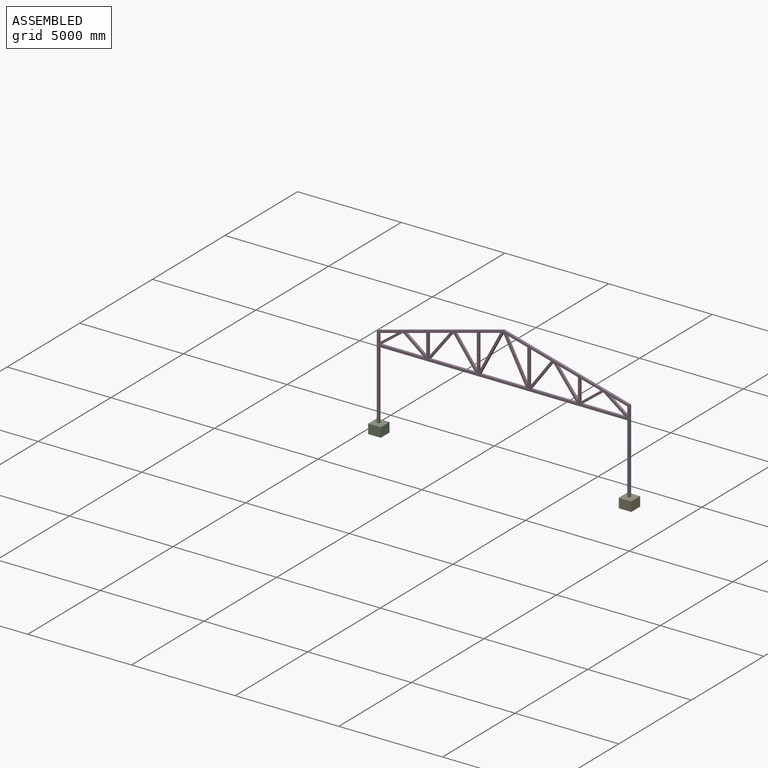
[diagram: assembled view]
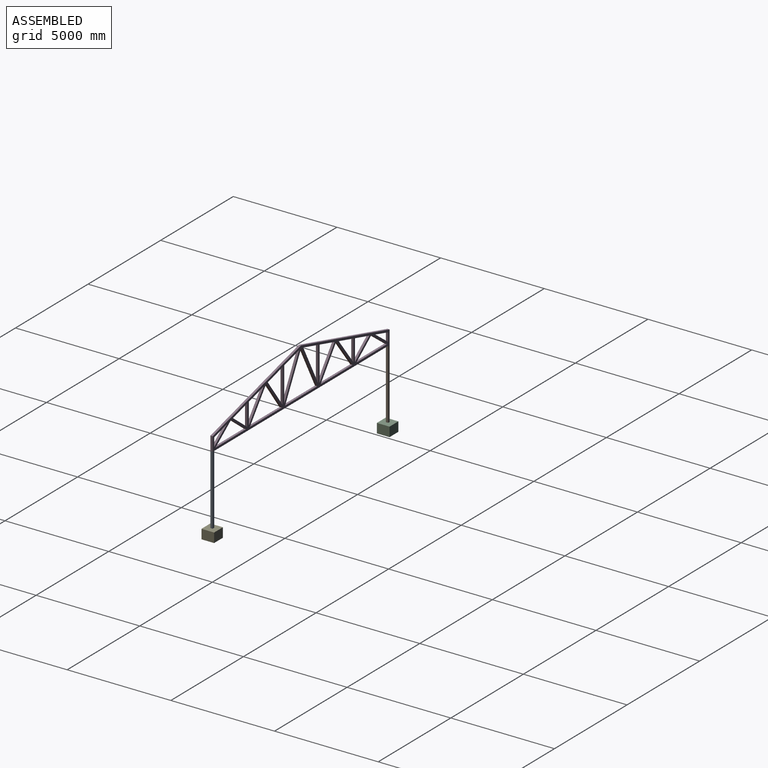
[diagram: assembled view, second angle]
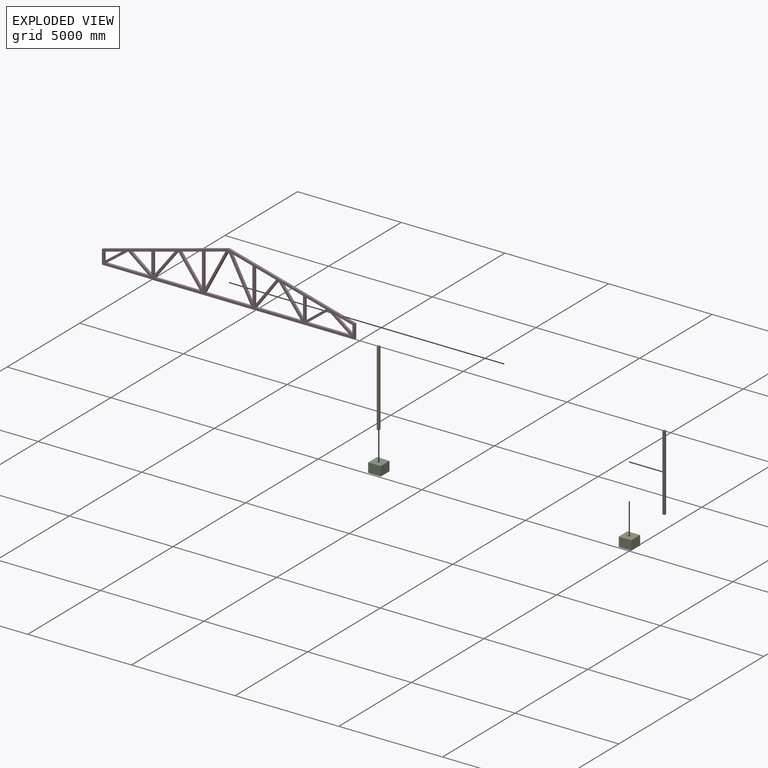
[diagram: exploded view]
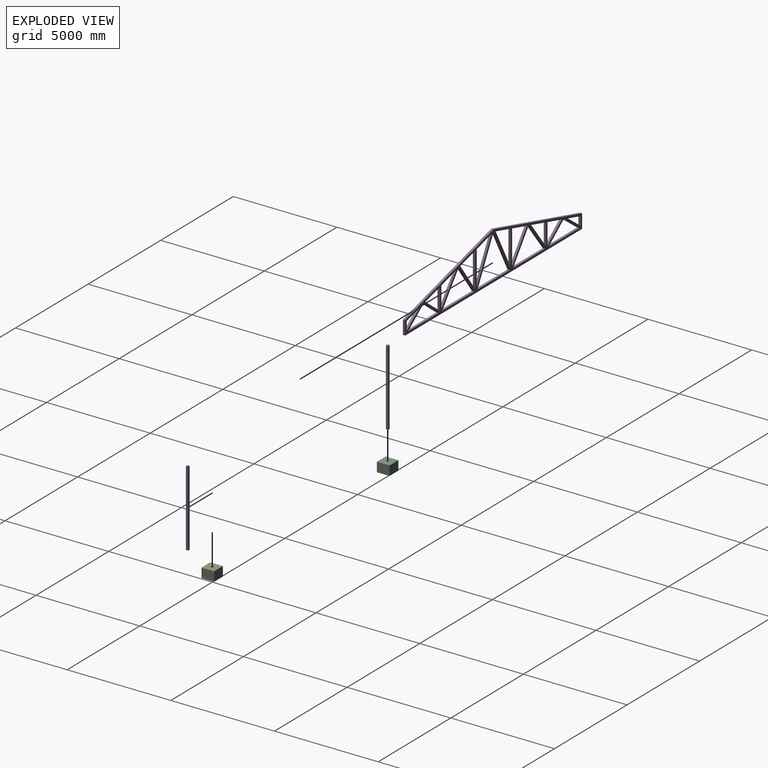
[diagram: exploded view, second angle]
ASSEMBLY  parts=5 mates=8
PART A: 6 faces, bbox 108x108x3657.6 mm
  f0: plane 3657.6x108mm, normal (0,-1,0), area 395020.8mm2, adj f1,f3,f4,f5
  f1: plane 3657.6x108mm, normal (1,0,0), area 395020.8mm2, adj f0,f2,f4,f5
  f2: plane 3657.6x108mm, normal (0,1,0), area 395020.8mm2, adj f1,f3,f4,f5
  f3: plane 3657.6x108mm, normal (-1,0,0), area 395020.8mm2, adj f0,f2,f4,f5
  f4: plane 108x108mm, normal (0,0,1), area 11664mm2, adj f0,f1,f2,f3
  f5: plane 108x108mm, normal (0,0,-1), area 11664mm2, adj f0,f1,f2,f3
PART B: same geometry as A
PART C: 11 faces, bbox 606.4x609.6x457.2 mm
  f0: plane 609.6x606.39mm, normal (0,0,1), area 357992.3mm2, adj f1,f2,f3,f4,f6,f7,f8,f9
  f1: plane 606.39x457.2mm, normal (0,-1,0), area 277242.2mm2, adj f0,f2,f4,f5
  f2: plane 609.6x457.2mm, normal (1,0,0), area 278709.1mm2, adj f0,f1,f3,f5
  f3: plane 606.39x457.2mm, normal (0,1,0), area 277242.2mm2, adj f0,f2,f4,f5
  f4: plane 609.6x457.2mm, normal (-1,0,0), area 278709.1mm2, adj f0,f1,f3,f5
  f5: plane 609.6x606.39mm, normal (0,0,-1), area 369656.3mm2, adj f1,f2,f3,f4
  f6: plane 304.8x108mm, normal (0,1,0), area 32918.4mm2, adj f0,f7,f9,f10
  f7: plane 304.8x108mm, normal (-1,0,0), area 32918.4mm2, adj f0,f6,f8,f10
  f8: plane 304.8x108mm, normal (0,-1,0), area 32918.4mm2, adj f0,f7,f9,f10
  f9: plane 304.8x108mm, normal (1,0,0), area 32918.4mm2, adj f0,f6,f8,f10
  f10: plane 108x108mm, normal (0,0,1), area 11664mm2, adj f6,f7,f8,f9
PART D: 52 faces, bbox 12192x108x2310.4 mm
  f0: plane 1027.6x275.34mm, normal (0.26,0,-0.97), area 114895.7mm2, adj f1,f49,f50,f51
  f1: plane 1658.9x108mm, normal (-1,0,0), area 179161.2mm2, adj f0,f49,f50,f51
  f2: plane 1444.06x1122.21mm, normal (0.79,0,-0.61), area 197514.8mm2, adj f3,f34,f50,f51
  f3: plane 1444.06x1072.54mm, normal (-0.8,0,-0.6), area 194268.9mm2, adj f2,f34,f50,f51
  f4: plane 1037.03x108mm, normal (1,0,0), area 111999.7mm2, adj f5,f35,f50,f51
  f5: plane 1017.85x272.73mm, normal (0.26,0,-0.97), area 113805.7mm2, adj f4,f35,f50,f51
  f6: plane 990.84x762.47mm, normal (0.61,0,0.79), area 135026.5mm2, adj f7,f36,f50,f51
  f7: plane 990.84x265.49mm, normal (0.26,0,-0.97), area 110785.4mm2, adj f6,f36,f50,f51
  f8: plane 1064.02x795.41mm, normal (0.6,0,-0.8), area 143473.9mm2, adj f9,f37,f50,f51
  f9: plane 1033.65x795.41mm, normal (-0.61,0,-0.79), area 140860.2mm2, adj f8,f37,f50,f51
  f10: plane 418.72x108mm, normal (1,0,0), area 45221.5mm2, adj f11,f38,f50,f51
  f11: plane 873.06x233.93mm, normal (0.26,0,-0.97), area 97616.2mm2, adj f10,f38,f50,f51
  f12: plane 12192x108mm, normal (0,0,-1), area 1316736mm2, adj f13,f39,f50,f51
  f13: plane 677.01x108mm, normal (1,0,0), area 73117.1mm2, adj f12,f14,f50,f51
  f14: plane 6096x1633.42mm, normal (0.26,0,0.97), area 681592.7mm2, adj f13,f15,f50,f51
  f15: plane 6096x1633.42mm, normal (-0.26,0,0.97), area 681592.7mm2, adj f14,f39,f50,f51
  f16: plane 879.34x654.44mm, normal (0.6,0,0.8), area 118383.9mm2, adj f17,f40,f50,f51
  f17: plane 879.34x235.62mm, normal (-0.26,0,-0.97), area 98319.1mm2, adj f16,f40,f50,f51
  f18: plane 1026.39x797.5mm, normal (0.61,0,-0.79), area 140378.1mm2, adj f19,f41,f50,f51
  f19: plane 1071.55x797.5mm, normal (-0.6,0,-0.8), area 144260.9mm2, adj f18,f41,f50,f51
  f20: plane 1027.71x108mm, normal (1,0,0), area 110993.1mm2, adj f21,f42,f50,f51
  f21: plane 983.51x263.53mm, normal (-0.26,0,-0.97), area 109966.4mm2, adj f20,f42,f50,f51
  f22: plane 1309.77x1017.85mm, normal (0.79,0,0.61), area 179146.8mm2, adj f23,f43,f50,f51
  f23: plane 1017.85x272.73mm, normal (-0.26,0,-0.97), area 113805.7mm2, adj f22,f43,f50,f51
  f24: plane 1444.06x1072.54mm, normal (0.8,0,-0.6), area 194268.9mm2, adj f25,f44,f50,f51
  f25: plane 1444.06x1122.21mm, normal (-0.79,0,-0.61), area 197514.8mm2, adj f24,f44,f50,f51
  f26: plane 1658.9x108mm, normal (1,0,0), area 179161.2mm2, adj f27,f45,f50,f51
  f27: plane 1027.6x275.34mm, normal (-0.26,0,-0.97), area 114895.7mm2, adj f26,f45,f50,f51
  f28: plane 1936.87x1022.93mm, normal (0.88,0,0.47), area 236562.9mm2, adj f29,f46,f50,f51
  f29: plane 1022.93x274.09mm, normal (-0.26,0,-0.97), area 114373.6mm2, adj f28,f46,f50,f51
  f30: plane 2090.62x1104.13mm, normal (0.88,0,-0.47), area 255341.6mm2, adj f31,f47,f50,f51
  f31: plane 2090.62x1104.13mm, normal (-0.88,0,-0.47), area 255341.6mm2, adj f30,f47,f50,f51
  f32: plane 1662.77x108mm, normal (1,0,0), area 179579.6mm2, adj f33,f48,f50,f51
  f33: plane 1022.93x274.09mm, normal (0.26,0,-0.97), area 114373.6mm2, adj f32,f48,f50,f51
  f34: plane 2194.75x108mm, normal (0,0,1), area 237032.6mm2, adj f2,f3,f50,f51
  f35: plane 1309.77x1017.85mm, normal (-0.79,0,0.61), area 179146.8mm2, adj f4,f5,f50,f51
  f36: plane 1027.96x108mm, normal (-1,0,0), area 111019.7mm2, adj f6,f7,f50,f51
  f37: plane 2097.67x108mm, normal (0,0,1), area 226547.8mm2, adj f8,f9,f50,f51
  f38: plane 873.06x652.65mm, normal (-0.6,0,0.8), area 117724mm2, adj f10,f11,f50,f51
  f39: plane 677.01x108mm, normal (-1,0,0), area 73117.1mm2, adj f12,f15,f50,f51
  f40: plane 418.82x108mm, normal (-1,0,0), area 45233.1mm2, adj f16,f17,f50,f51
  f41: plane 2097.94x108mm, normal (0,0,1), area 226577.7mm2, adj f18,f19,f50,f51
  f42: plane 983.51x764.18mm, normal (-0.61,0,0.79), area 134514.1mm2, adj f20,f21,f50,f51
  f43: plane 1037.03x108mm, normal (-1,0,0), area 111999.7mm2, adj f22,f23,f50,f51
  f44: plane 2194.75x108mm, normal (0,0,1), area 237032.6mm2, adj f24,f25,f50,f51
  f45: plane 1383.56x1027.6mm, normal (-0.8,0,0.6), area 186129.7mm2, adj f26,f27,f50,f51
  f46: plane 1662.77x108mm, normal (-1,0,0), area 179579.6mm2, adj f28,f29,f50,f51
  f47: plane 2208.26x108mm, normal (0,0,1), area 238492.4mm2, adj f30,f31,f50,f51
  f48: plane 1936.87x1022.93mm, normal (-0.88,0,0.47), area 236562.9mm2, adj f32,f33,f50,f51
  f49: plane 1383.56x1027.6mm, normal (0.8,0,0.6), area 186129.7mm2, adj f0,f1,f50,f51
  f50: plane 12192x2310.43mm, normal (0,-1,0), area 5220251.9mm2, adj f0,f1,f2,f3,f4,f5,f6,f7
  f51: plane 12192x2310.43mm, normal (0,1,0), area 5220251.9mm2, adj f0,f1,f2,f3,f4,f5,f6,f7
PART E: same geometry as C
PLACE A rot(axis=(-0.71,0.71,0),180deg) t=(-6.93,0,3352.8)mm
PLACE B rot(axis=(0,-0.02,1),0deg) t=(-12084,6.93,-304.8)mm
PLACE C rot(axis=(0.01,0.42,-0.91),0deg) t=(-12084,0,-457.2)mm
PLACE D rot(axis=(0,0,1),180deg) t=(-6042,-54,3352.8)mm
PLACE E t=(0,0,-457.2)mm
MATE planar B.f3 <-> D.f13  axis (-1,0,0) through (-12138,0,1524)mm
MATE fastened C.f10 <-> B.f5  axis (0,0,1) through (-12084,0,-304.8)mm
MATE planar D.f39 <-> A.f0  axis (1,0,0) through (54,0,3691.3)mm
MATE planar D.f12 <-> A.f5  axis (0,0,-1) through (-6042,0,3352.8)mm
MATE planar B.f0 <-> D.f51  axis (0,-1,0) through (-12084,-54,1524)mm
MATE fastened E.f10 <-> A.f4  axis (0,0,1) through (0,0,-304.8)mm
MATE planar D.f12 <-> B.f4  axis (0,0,-1) through (-6042,0,3352.8)mm
MATE planar A.f1 <-> D.f51  axis (0,-1,0) through (0,-54,1524)mm
